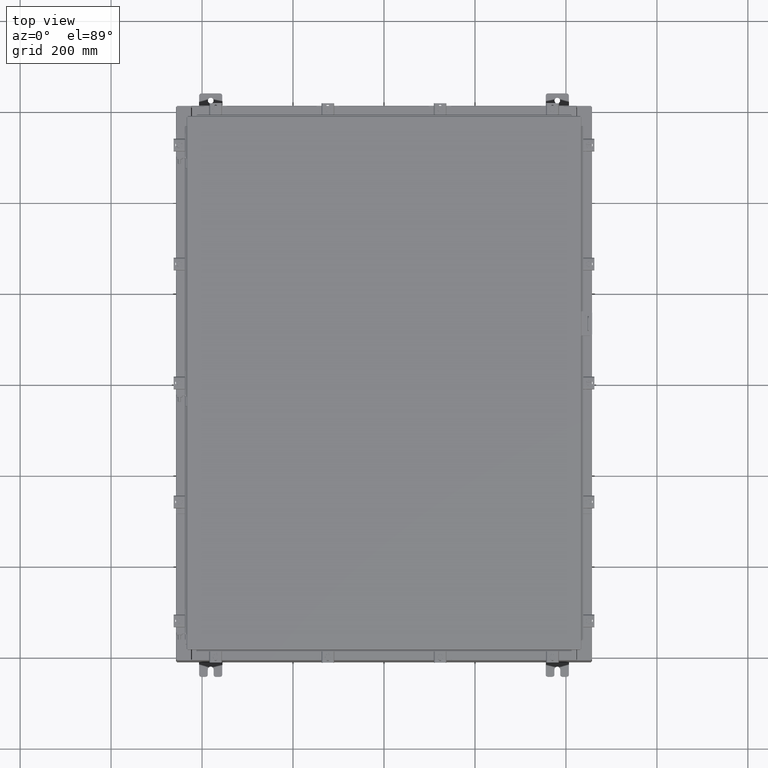
[diagram: clean part render]
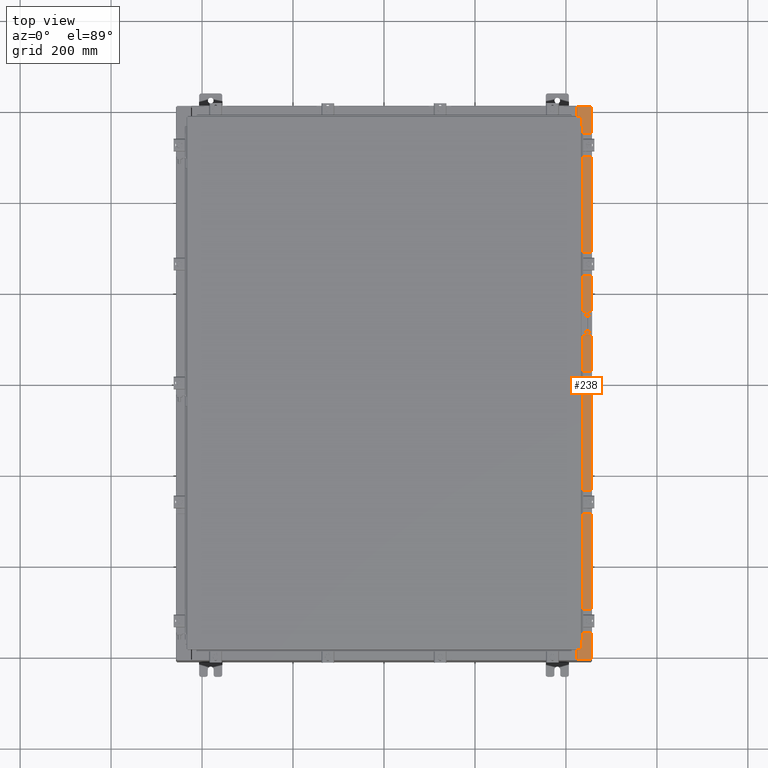
[diagram: same view with one face highlighted and labeled with its STEP entity id]
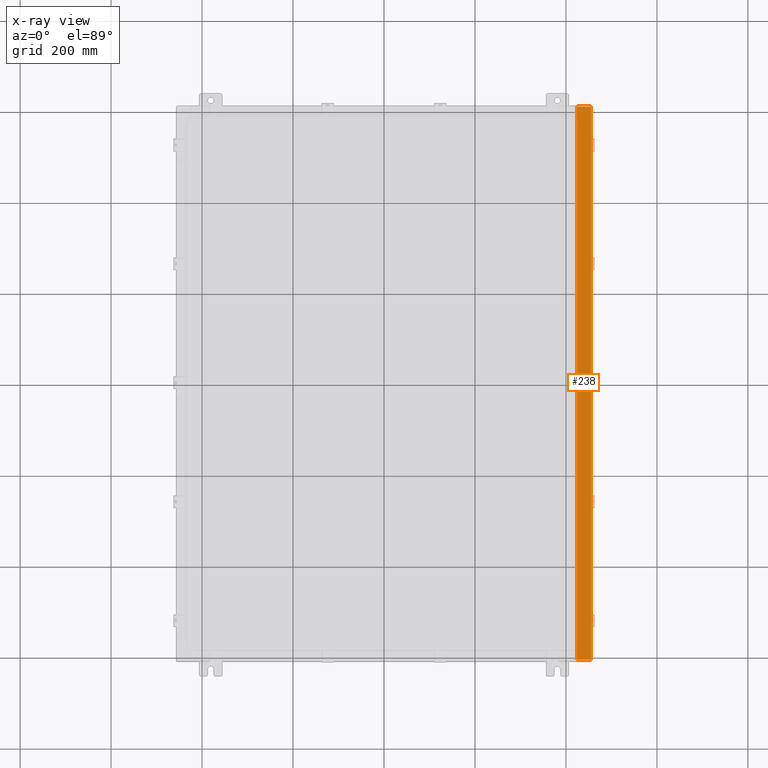
[diagram: x-ray of the same camera — body ghosted, the highlighted face saturated]
A machine part, top view. The second image highlights one B-rep face of the part: STEP entity #238.
The next image is the same camera in x-ray: the body ghosted, the highlighted face saturated — about 0% of this face is hidden behind the body in this view.
In plain terms, the highlighted planar face has unit normal (-0, 0, -1).
Its self-contained STEP definition (entity closure, byte-faithful):
#168 = CARTESIAN_POINT ( 'NONE',  ( 17.91230000000003000, -23.92529999999998900, 9.925300000000001800 ) ) ;
#238 = ADVANCED_FACE ( 'NONE', ( #22733 ), #4796, .F. ) ;
#499 = AXIS2_PLACEMENT_3D ( 'NONE', #6776, #4920, #4860 ) ;
#1406 = CARTESIAN_POINT ( 'NONE',  ( 5.335691853495976800E-014, 23.92529999999998600, 9.925300000000099500 ) ) ;
#1469 = VERTEX_POINT ( 'NONE', #10263 ) ;
#1494 = CARTESIAN_POINT ( 'NONE',  ( 16.75005000000003400, -22.59374999999998900, 9.925300000000010700 ) ) ;
#1542 = CARTESIAN_POINT ( 'NONE',  ( 16.69970000000003200, -5.350181231484365000E-030, 9.925300000000008900 ) ) ;
#2086 = ORIENTED_EDGE ( 'NONE', *, *, #21977, .F. ) ;
#2597 = DIRECTION ( 'NONE',  ( -1.000000000000000000, 0.0000000000000000000, 5.349571789159789300E-015 ) ) ;
#2722 = LINE ( 'NONE', #20286, #24745 ) ;
#3241 = EDGE_CURVE ( 'NONE', #18563, #1469, #24334, .T. ) ;
#3328 = VERTEX_POINT ( 'NONE', #23031 ) ;
#3957 = CARTESIAN_POINT ( 'NONE',  ( 16.69970000000003200, 22.63109999999995000, 9.925300000000008900 ) ) ;
#4060 = AXIS2_PLACEMENT_3D ( 'NONE', #5324, #20216, #7482 ) ;
#4168 = LINE ( 'NONE', #6183, #4817 ) ;
#4383 = CARTESIAN_POINT ( 'NONE',  ( 16.71270000000003400, 22.59374999999995400, 9.925300000000010700 ) ) ;
#4460 = EDGE_CURVE ( 'NONE', #8374, #3328, #5906, .T. ) ;
#4796 = PLANE ( 'NONE',  #499 ) ;
#4817 = VECTOR ( 'NONE', #23236, 39.37007874015748100 ) ;
#4860 = DIRECTION ( 'NONE',  ( -1.000000000000000000, 0.0000000000000000000, 5.349571789159788500E-015 ) ) ;
#4920 = DIRECTION ( 'NONE',  ( -5.349571789159788500E-015, 0.0000000000000000000, -1.000000000000000000 ) ) ;
#4959 = DIRECTION ( 'NONE',  ( 1.000000000000000000, 8.144358738339257800E-032, -5.349571789159789300E-015 ) ) ;
#5031 = CARTESIAN_POINT ( 'NONE',  ( 16.69970000000003200, -22.63109999999998600, 9.925300000000008900 ) ) ;
#5032 = ORIENTED_EDGE ( 'NONE', *, *, #21568, .T. ) ;
#5111 = LINE ( 'NONE', #1406, #27138 ) ;
#5165 = ORIENTED_EDGE ( 'NONE', *, *, #6715, .T. ) ;
#5324 = CARTESIAN_POINT ( 'NONE',  ( 16.75005000000003400, -22.61242499999998800, 9.925300000000010700 ) ) ;
#5608 = CARTESIAN_POINT ( 'NONE',  ( 16.75005000000003400, 22.63109999999995000, 9.925300000000008900 ) ) ;
#5906 = LINE ( 'NONE', #168, #17216 ) ;
#5990 = EDGE_CURVE ( 'NONE', #8848, #14490, #20481, .T. ) ;
#6183 = CARTESIAN_POINT ( 'NONE',  ( 16.71270000000003400, 22.59374999999995400, 9.925300000000010700 ) ) ;
#6292 = VECTOR ( 'NONE', #26016, 39.37007874015748100 ) ;
#6715 = EDGE_CURVE ( 'NONE', #8374, #8795, #5111, .T. ) ;
#6755 = VERTEX_POINT ( 'NONE', #19925 ) ;
#6776 = CARTESIAN_POINT ( 'NONE',  ( 5.335691853495976800E-014, 0.0000000000000000000, 9.925300000000099500 ) ) ;
#7270 = ORIENTED_EDGE ( 'NONE', *, *, #19789, .T. ) ;
#7474 = ORIENTED_EDGE ( 'NONE', *, *, #5990, .F. ) ;
#7482 = DIRECTION ( 'NONE',  ( 1.000000000000000000, 0.0000000000000000000, 0.0000000000000000000 ) ) ;
#7677 = CARTESIAN_POINT ( 'NONE',  ( 17.91230000000003000, 23.92529999999998600, 9.925300000000001800 ) ) ;
#8224 = ORIENTED_EDGE ( 'NONE', *, *, #13271, .F. ) ;
#8374 = VERTEX_POINT ( 'NONE', #7677 ) ;
#8515 = VERTEX_POINT ( 'NONE', #18644 ) ;
#8795 = VERTEX_POINT ( 'NONE', #13252 ) ;
#8848 = VERTEX_POINT ( 'NONE', #16148 ) ;
#9227 = VERTEX_POINT ( 'NONE', #4383 ) ;
#9819 = LINE ( 'NONE', #27315, #26122 ) ;
#9830 = VECTOR ( 'NONE', #14240, 39.37007874015748100 ) ;
#10263 = CARTESIAN_POINT ( 'NONE',  ( 16.75005000000003400, -22.63109999999998600, 9.925300000000008900 ) ) ;
#10302 = DIRECTION ( 'NONE',  ( -0.0000000000000000000, 1.000000000000000000, -0.0000000000000000000 ) ) ;
#10436 = AXIS2_PLACEMENT_3D ( 'NONE', #11279, #10720, #10942 ) ;
#10720 = DIRECTION ( 'NONE',  ( 5.349571789159788500E-015, 0.0000000000000000000, 1.000000000000000000 ) ) ;
#10942 = DIRECTION ( 'NONE',  ( 1.000000000000000000, 0.0000000000000000000, 0.0000000000000000000 ) ) ;
#11279 = CARTESIAN_POINT ( 'NONE',  ( 16.75005000000003400, 22.61242499999995200, 9.925300000000010700 ) ) ;
#11281 = EDGE_CURVE ( 'NONE', #14490, #12873, #18273, .T. ) ;
#11419 = DIRECTION ( 'NONE',  ( 1.000000000000000000, 0.0000000000000000000, 0.0000000000000000000 ) ) ;
#11531 = ORIENTED_EDGE ( 'NONE', *, *, #11281, .F. ) ;
#12404 = ORIENTED_EDGE ( 'NONE', *, *, #4460, .F. ) ;
#12873 = VERTEX_POINT ( 'NONE', #3957 ) ;
#13252 = CARTESIAN_POINT ( 'NONE',  ( 16.69970000000003200, 23.92529999999998200, 9.925300000000008900 ) ) ;
#13271 = EDGE_CURVE ( 'NONE', #1469, #22145, #18517, .T. ) ;
#14240 = DIRECTION ( 'NONE',  ( -1.000000000000000000, 0.0000000000000000000, 0.0000000000000000000 ) ) ;
#14289 = DIRECTION ( 'NONE',  ( -3.203758888773074600E-031, -1.000000000000000000, 1.713873817065035100E-045 ) ) ;
#14490 = VERTEX_POINT ( 'NONE', #5608 ) ;
#14640 = EDGE_CURVE ( 'NONE', #8515, #9227, #9819, .T. ) ;
#15156 = EDGE_CURVE ( 'NONE', #18563, #6755, #2722, .T. ) ;
#15439 = LINE ( 'NONE', #1494, #9830 ) ;
#16085 = DIRECTION ( 'NONE',  ( -3.203758888773074600E-031, -1.000000000000000000, 1.713873817065035100E-045 ) ) ;
#16148 = CARTESIAN_POINT ( 'NONE',  ( 16.75005000000003400, 22.59374999999995400, 9.925300000000008900 ) ) ;
#17216 = VECTOR ( 'NONE', #26940, 39.37007874015748100 ) ;
#17634 = CARTESIAN_POINT ( 'NONE',  ( 5.335691853495976800E-014, -23.92529999999998900, 9.925300000000099500 ) ) ;
#18273 = LINE ( 'NONE', #23847, #6292 ) ;
#18517 = CIRCLE ( 'NONE', #4060, 0.01867499999999949400 ) ;
#18525 = VECTOR ( 'NONE', #4959, 39.37007874015748100 ) ;
#18563 = VERTEX_POINT ( 'NONE', #5031 ) ;
#18644 = CARTESIAN_POINT ( 'NONE',  ( 16.71270000000003400, -22.59374999999998900, 9.925300000000010700 ) ) ;
#19700 = ORIENTED_EDGE ( 'NONE', *, *, #15156, .T. ) ;
#19789 = EDGE_CURVE ( 'NONE', #8795, #12873, #20589, .T. ) ;
#19925 = CARTESIAN_POINT ( 'NONE',  ( 16.69970000000003200, -23.92529999999998900, 9.925300000000008900 ) ) ;
#20216 = DIRECTION ( 'NONE',  ( 5.349571789159788500E-015, 0.0000000000000000000, 1.000000000000000000 ) ) ;
#20286 = CARTESIAN_POINT ( 'NONE',  ( 16.69970000000003200, -5.350181231484365000E-030, 9.925300000000008900 ) ) ;
#20473 = ORIENTED_EDGE ( 'NONE', *, *, #14640, .F. ) ;
#20481 = CIRCLE ( 'NONE', #10436, 0.01867499999999949400 ) ;
#20589 = LINE ( 'NONE', #1542, #25624 ) ;
#20880 = ORIENTED_EDGE ( 'NONE', *, *, #3241, .F. ) ;
#21485 = ORIENTED_EDGE ( 'NONE', *, *, #23150, .F. ) ;
#21568 = EDGE_CURVE ( 'NONE', #6755, #3328, #23533, .T. ) ;
#21977 = EDGE_CURVE ( 'NONE', #9227, #8848, #4168, .T. ) ;
#22145 = VERTEX_POINT ( 'NONE', #25835 ) ;
#22319 = VECTOR ( 'NONE', #11419, 39.37007874015748100 ) ;
#22733 = FACE_OUTER_BOUND ( 'NONE', #23819, .T. ) ;
#23031 = CARTESIAN_POINT ( 'NONE',  ( 17.91230000000003000, -23.92529999999998900, 9.925300000000001800 ) ) ;
#23150 = EDGE_CURVE ( 'NONE', #22145, #8515, #15439, .T. ) ;
#23236 = DIRECTION ( 'NONE',  ( 1.000000000000000000, 0.0000000000000000000, 0.0000000000000000000 ) ) ;
#23409 = CARTESIAN_POINT ( 'NONE',  ( 16.69970000000003200, -22.63109999999998600, 9.925300000000010700 ) ) ;
#23533 = LINE ( 'NONE', #17634, #18525 ) ;
#23819 = EDGE_LOOP ( 'NONE', ( #20880, #19700, #5032, #12404, #5165, #7270, #11531, #7474, #2086, #20473, #21485, #8224 ) ) ;
#23847 = CARTESIAN_POINT ( 'NONE',  ( 16.75005000000003400, 22.63109999999995000, 9.925300000000010700 ) ) ;
#24334 = LINE ( 'NONE', #23409, #22319 ) ;
#24745 = VECTOR ( 'NONE', #16085, 39.37007874015748100 ) ;
#25624 = VECTOR ( 'NONE', #14289, 39.37007874015748100 ) ;
#25835 = CARTESIAN_POINT ( 'NONE',  ( 16.75005000000003400, -22.59374999999998900, 9.925300000000008900 ) ) ;
#26016 = DIRECTION ( 'NONE',  ( -1.000000000000000000, 0.0000000000000000000, 0.0000000000000000000 ) ) ;
#26122 = VECTOR ( 'NONE', #10302, 39.37007874015748100 ) ;
#26940 = DIRECTION ( 'NONE',  ( -0.0000000000000000000, -1.000000000000000000, -0.0000000000000000000 ) ) ;
#27138 = VECTOR ( 'NONE', #2597, 39.37007874015748100 ) ;
#27315 = CARTESIAN_POINT ( 'NONE',  ( 16.71270000000003400, -22.59374999999997900, 9.925300000000010700 ) ) ;